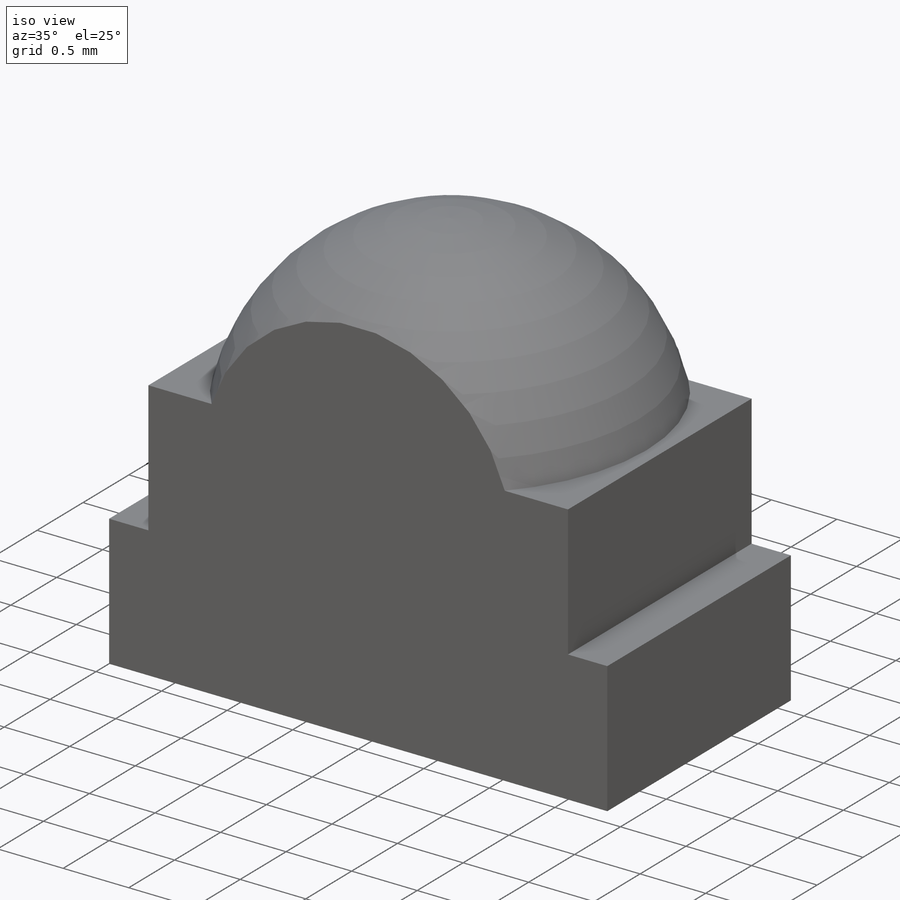
[diagram: iso view]
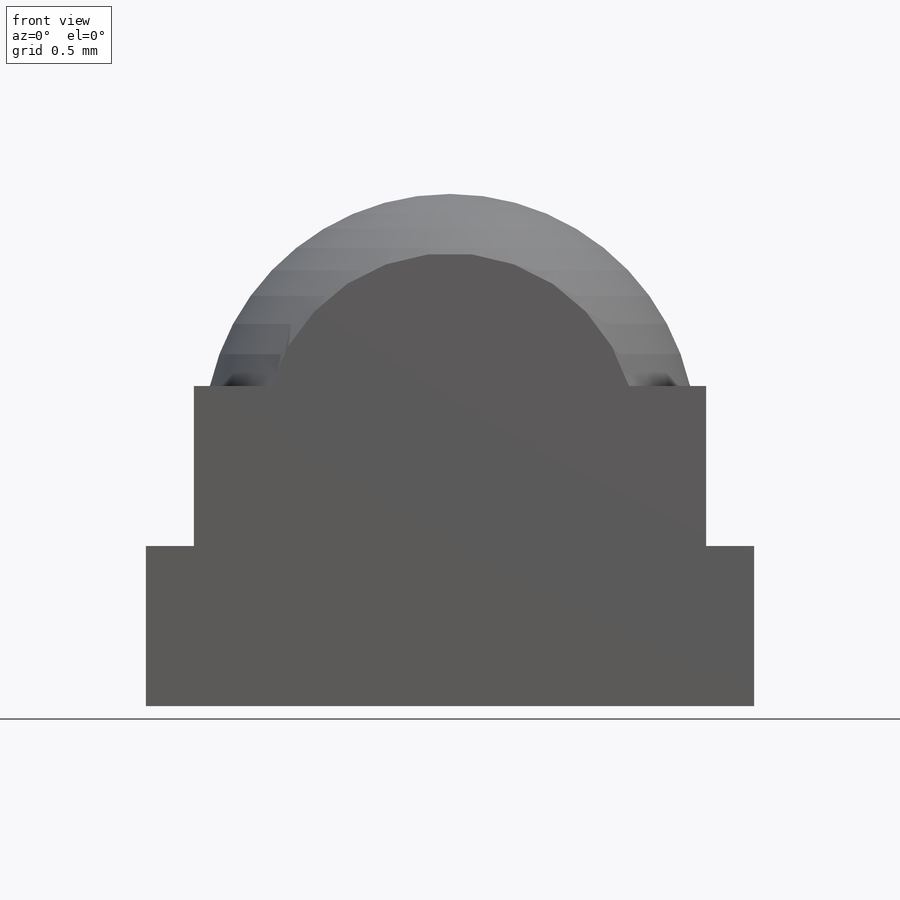
[diagram: front view]
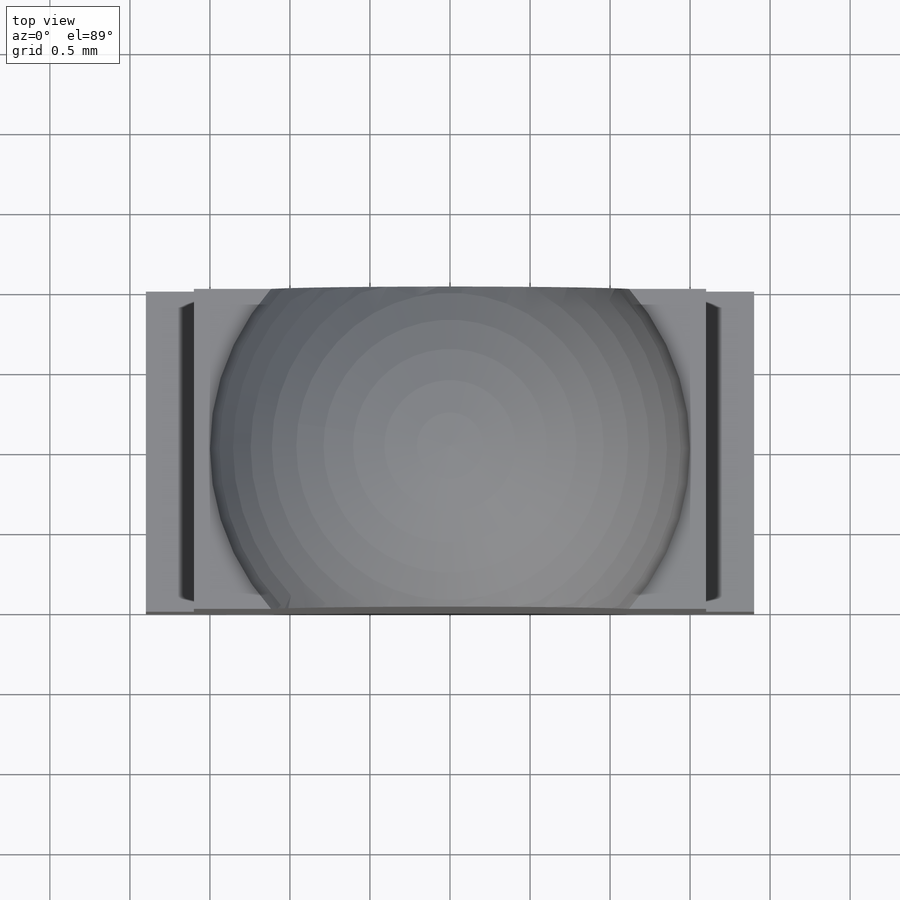
[diagram: top view]
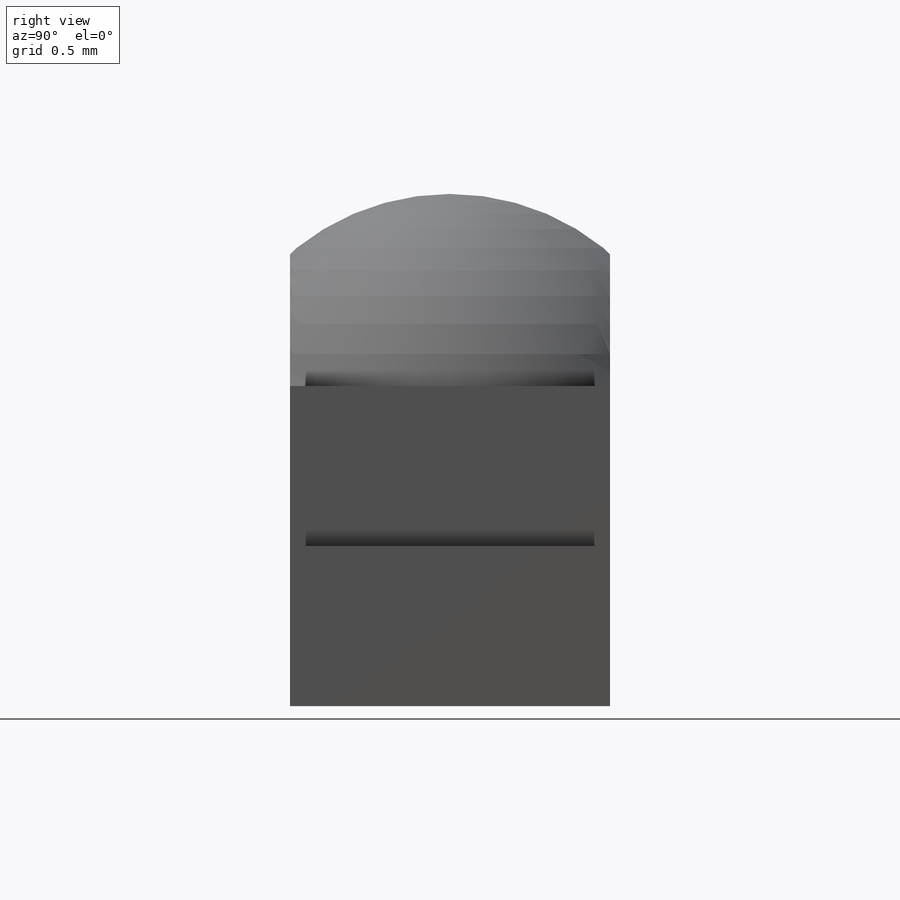
[diagram: right view]
SOLIDWORKS PART (.sldprt)
format: sldprt  version: not decoded by parser v0  size: 681,984 bytes
history: native  units: mm
features: sketch x7, extrude x4, cut_extrude x2, material x1, revolve x1 (+12 scaffold rows collapsed)
feature tree (27):
  scaffold x12  (default folders/planes/origin — collapsed)
  material  "Material <not specified>"
  sketch  "Sketch1"  dims[c1.D5=0.85mm c1.D1=1.0mm c1.D2=3.8mm c1.D3=1.4mm c1.D4=3.2mm c1.D6=0.95mm c1.D7=2.8mm c1.D8=1.0mm c1.D9=0.4mm c1.D10=0.03mm c1.D11=0.03mm c1.D12=1.1mm c2.D3=1.0mm c2.D5=3.2mm c2.D6=0.1mm c2.D7=0.03mm c2.D8=1.0mm]
  extrude  "Extrude1"  Depth=2mm
  extrude  "Extrude2"  [1 undecoded]
  sketch  "Sketch1<3>"  dims[D1=2.0mm]
  extrude  "Extrude3"  [1 undecoded]
  sketch  "Sketch1<5>"  dims[D1=2.0mm]
  revolve  "Revolve2"  [1 undecoded]
  sketch  "Sketch1<14>"  dims[D1=360.0deg]
  sketch  "Sketch2"
  cut_extrude  "Cut-Extrude2"  [1 undecoded]
  sketch  "Sketch3"
  extrude  "Extrude4"  Depth=0.02mm
  sketch  "Sketch4"
  cut_extrude  "Cut-Extrude3"  Depth=0.01mm
decode coverage: 7 of 14 modeling features carry decoded parameters
note: 4 parameter values undecoded
summary: no parameter record found for 4 features
note: suppression state not decoded; provenance and decode notes live in map.json
